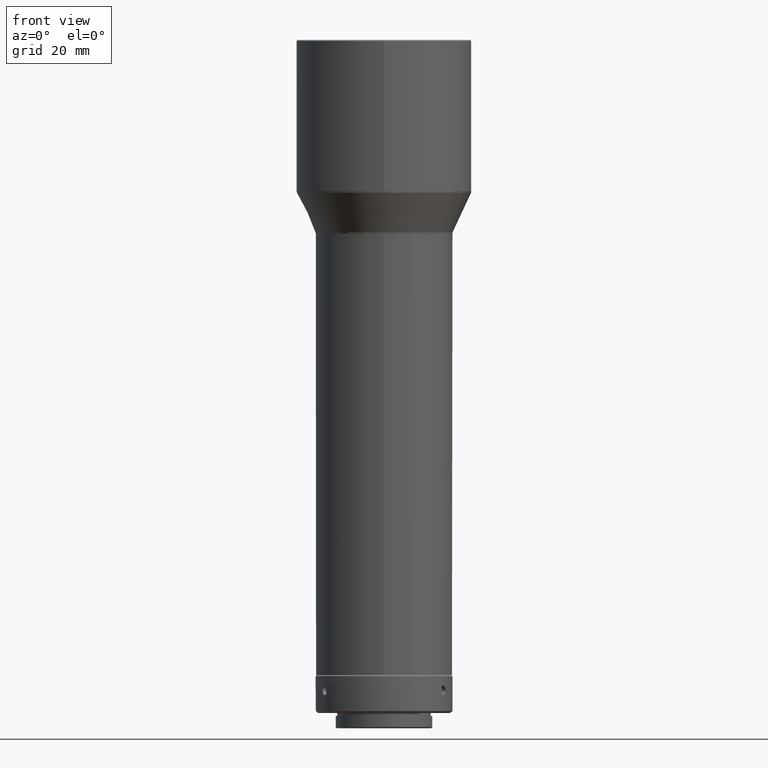
[diagram: clean part render]
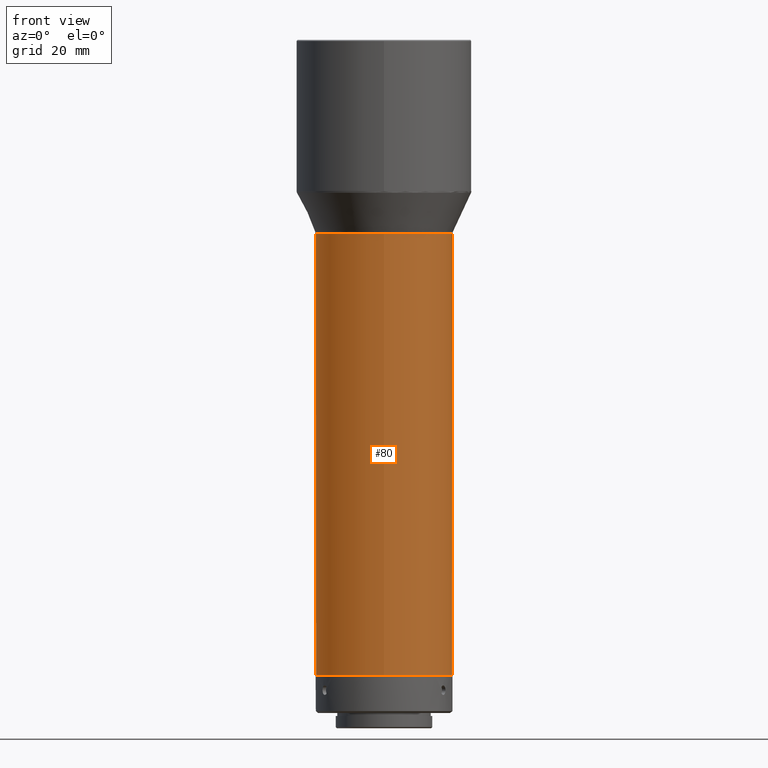
[diagram: same view with one face highlighted and labeled with its STEP entity id]
A machine part, front view. The second image highlights one B-rep face of the part: STEP entity #80.
In plain terms, the highlighted cylindrical surface (bore or boss wall) has radius 18 mm, axis along (-0, -0, 1).
Its self-contained STEP definition (entity closure, byte-faithful):
#5 = EDGE_LOOP ( 'NONE', ( #611 ) ) ;
#9 = AXIS2_PLACEMENT_3D ( 'NONE', #572, #499, #372 ) ;
#80 = ADVANCED_FACE ( 'NONE', ( #357, #477 ), #94, .T. ) ;
#94 = CYLINDRICAL_SURFACE ( 'NONE', #708, 18.00000000000000355 ) ;
#196 = ORIENTED_EDGE ( 'NONE', *, *, #409, .T. ) ;
#239 = DIRECTION ( 'NONE',  ( 0.000000000000000000, -1.000000000000000000, 0.000000000000000000 ) ) ;
#296 = DIRECTION ( 'NONE',  ( 4.208976393280964279E-22, 5.550944505959339029E-17, -1.000000000000000000 ) ) ;
#297 = CARTESIAN_POINT ( 'NONE',  ( -1.181967357501591288E-14, -8.290516116474524186E-15, -733.0000000000000000 ) ) ;
#357 = FACE_OUTER_BOUND ( 'NONE', #658, .T. ) ;
#362 = DIRECTION ( 'NONE',  ( -4.208976393280964279E-22, -5.550944505959339029E-17, 1.000000000000000000 ) ) ;
#372 = DIRECTION ( 'NONE',  ( 0.000000000000000000, -1.000000000000000000, 0.000000000000000000 ) ) ;
#401 = VERTEX_POINT ( 'NONE', #516 ) ;
#406 = VERTEX_POINT ( 'NONE', #529 ) ;
#409 = EDGE_CURVE ( 'NONE', #406, #406, #631, .T. ) ;
#477 = FACE_OUTER_BOUND ( 'NONE', #5, .T. ) ;
#499 = DIRECTION ( 'NONE',  ( -4.208976393280964279E-22, -5.550944505959339029E-17, 1.000000000000000000 ) ) ;
#516 = CARTESIAN_POINT ( 'NONE',  ( -1.181960325000223171E-14, -18.00000000000000355, -900.0834120000000667 ) ) ;
#529 = CARTESIAN_POINT ( 'NONE',  ( -1.181965213271007789E-14, -18.00000000000001066, -783.9442292651908701 ) ) ;
#530 = DIRECTION ( 'NONE',  ( 0.000000000000000000, -1.000000000000000000, 0.000000000000000000 ) ) ;
#545 = CIRCLE ( 'NONE', #9, 18.00000000000000355 ) ;
#572 = CARTESIAN_POINT ( 'NONE',  ( -1.181960325000223171E-14, 9.841913623088880678E-16, -900.0834120000000667 ) ) ;
#588 = AXIS2_PLACEMENT_3D ( 'NONE', #669, #296, #530 ) ;
#611 = ORIENTED_EDGE ( 'NONE', *, *, #767, .T. ) ;
#631 = CIRCLE ( 'NONE', #588, 18.00000000000000355 ) ;
#658 = EDGE_LOOP ( 'NONE', ( #196 ) ) ;
#669 = CARTESIAN_POINT ( 'NONE',  ( -1.181965213271007789E-14, -5.462630220975078759E-15, -783.9442292651908701 ) ) ;
#708 = AXIS2_PLACEMENT_3D ( 'NONE', #297, #362, #239 ) ;
#767 = EDGE_CURVE ( 'NONE', #401, #401, #545, .T. ) ;